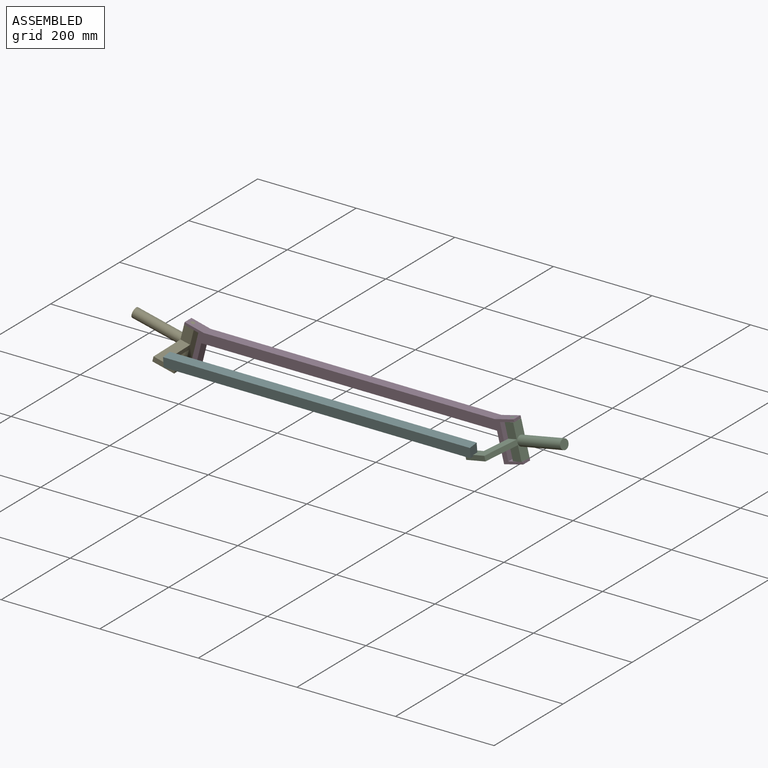
[diagram: assembled view]
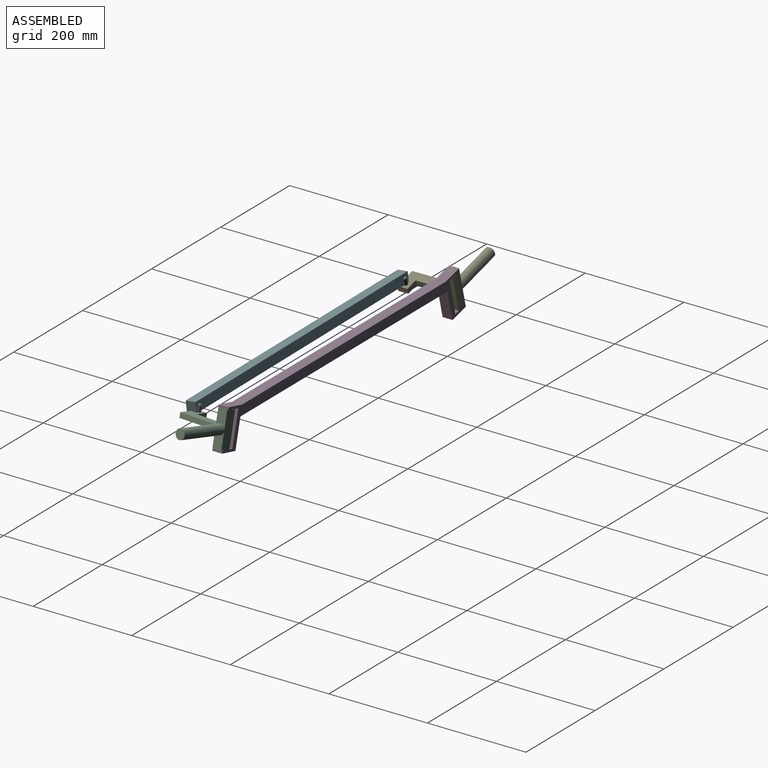
[diagram: assembled view, second angle]
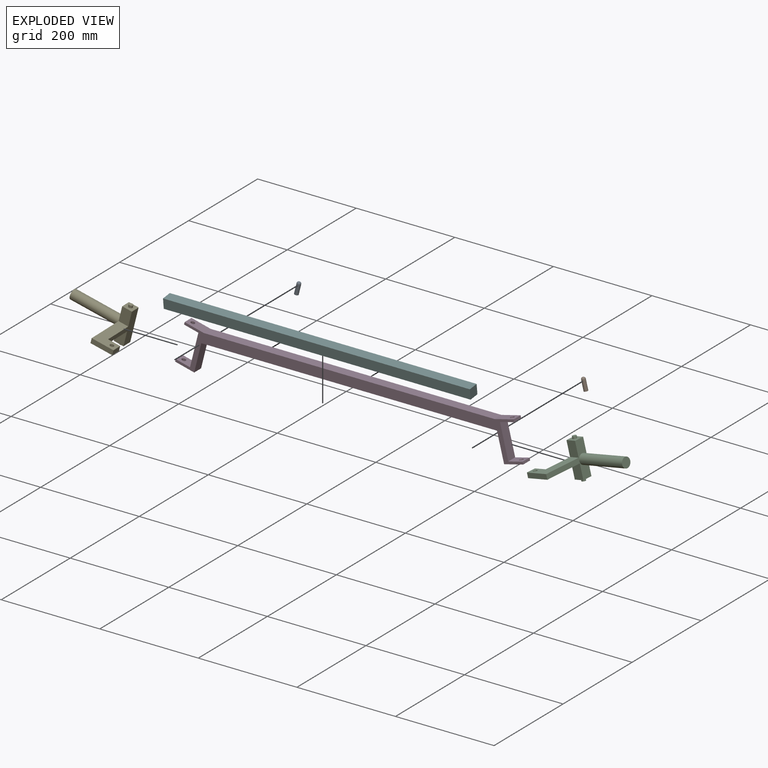
[diagram: exploded view]
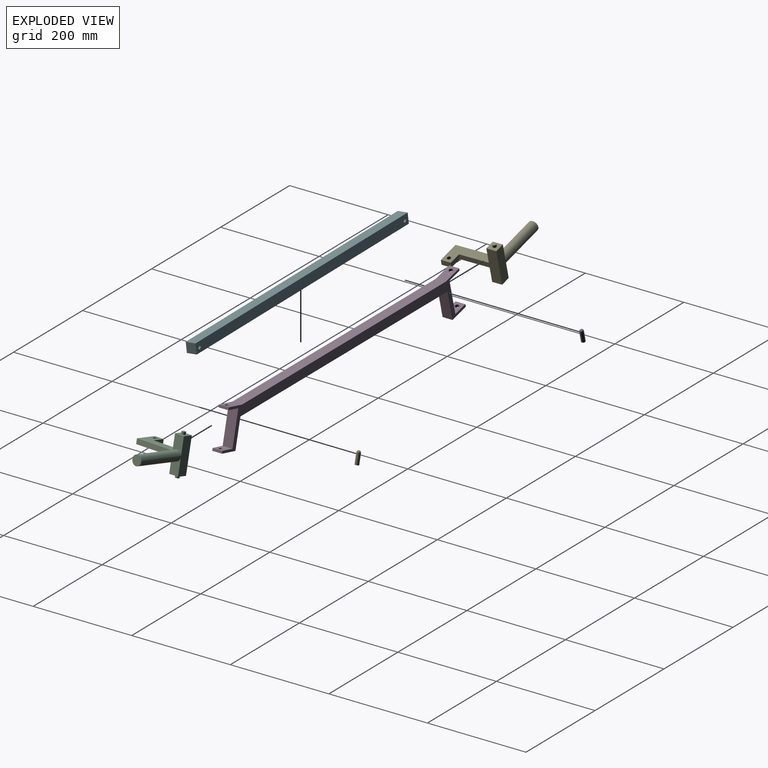
[diagram: exploded view, second angle]
ASSEMBLY  parts=6 mates=6
PART A: 3 faces, bbox 8x8x25 mm
  f0: cylinder r=4mm len=21mm, axis (0,0,-1), area 527.8mm2, adj f1,f2
  f1: plane 8x8mm, normal (0,0,-1), area 50.3mm2, adj f0
  f2: sphere r=4mm, area 100.5mm2, adj f0
PART B: same geometry as A
PART C: 19 faces, bbox 100x145x80 mm
  f0: plane 45x10mm, normal (1,0,0), area 450mm2, adj f6,f14,f15,f16
  f1: plane 30x20mm, normal (1,0,0), area 600mm2, adj f3,f6,f7,f14
  f2: plane 120x70mm, normal (-1,0,0), area 1678.8mm2, adj f3,f5,f6,f7,f12,f13
  f3: plane 20x20mm, normal (0,0,-1), area 349.7mm2, adj f1,f2,f6,f7,f10
  f4: plane 30x20mm, normal (1,0,0), area 600mm2, adj f5,f6,f7,f15
  f5: plane 20x20mm, normal (0,0,1), area 349.7mm2, adj f2,f4,f6,f7,f8
  f6: plane 100x70mm, normal (0,-1,0), area 1886mm2, adj f0,f1,f2,f3,f4,f5,f12,f14
  f7: plane 80x70mm, normal (0,1,0), area 2000mm2, adj f1,f2,f3,f4,f5,f14,f15,f17
  f8: cylinder r=4mm len=8mm, axis (0,0,-1), area 125.7mm2, adj f5,f9
  f9: plane 8x8mm, normal (0,0,1), area 50.3mm2, adj f8
  f10: cylinder r=4mm len=8mm, axis (0,0,1), area 125.7mm2, adj f3,f11
  f11: plane 8x8mm, normal (0,0,-1), area 50.3mm2, adj f10
  f12: cylinder r=10mm len=100mm, axis (0,1,0), area 6003.5mm2, adj f2,f6,f13
  f13: plane 20x19.9mm, normal (0,-1,0), area 314mm2, adj f2,f12
  f14: plane 80x45mm, normal (0,0,-1), area 2049.7mm2, adj f0,f1,f6,f7,f16,f17,f18
  f15: plane 80x45mm, normal (0,0,1), area 2049.7mm2, adj f0,f4,f6,f7,f16,f17,f18
  f16: plane 20x10mm, normal (0,1,0), area 200mm2, adj f0,f14,f15,f17
  f17: plane 25x10mm, normal (-1,0,0), area 250mm2, adj f7,f14,f15,f16
  f18: cylinder r=4mm len=10mm, axis (0,0,1), area 251.3mm2, adj f14,f15
PART D: 24 faces, bbox 706.4x20x87.3 mm
  f0: plane 20x4.85mm, normal (0.97,0,0.24), area 100mm2, adj f1,f4,f11,f17
  f1: plane 706.42x87.31mm, normal (0,-1,0), area 14100mm2, adj f0,f2,f3,f5,f6,f7,f8,f9
  f2: plane 20x4.85mm, normal (-0.97,0,0.24), area 100mm2, adj f1,f4,f6,f14
  f3: plane 590x20mm, normal (0,0,1), area 11800mm2, adj f1,f4,f6,f11
  f4: plane 706.42x87.31mm, normal (0,1,0), area 14100mm2, adj f0,f2,f3,f5,f6,f7,f8,f9
  f5: plane 600x20mm, normal (0,0,-1), area 12000mm2, adj f1,f4,f9,f10
  f6: plane 38.81x20mm, normal (0.24,0,0.97), area 749.7mm2, adj f1,f2,f3,f4,f21
  f7: plane 38.81x20mm, normal (-0.24,0,-0.97), area 749.7mm2, adj f1,f4,f8,f9,f20
  f8: plane 20x4.85mm, normal (-0.97,0,0.24), area 100mm2, adj f1,f4,f7,f15
  f9: plane 57.61x20mm, normal (0.97,0,-0.24), area 1187.7mm2, adj f1,f4,f5,f7
  f10: plane 57.61x20mm, normal (-0.97,0,-0.24), area 1187.7mm2, adj f1,f4,f5,f12
  f11: plane 38.81x20mm, normal (-0.24,0,0.97), area 749.7mm2, adj f0,f1,f3,f4,f23
  f12: plane 38.81x20mm, normal (0.24,0,-0.97), area 749.7mm2, adj f1,f4,f10,f13,f22
  f13: plane 20x4.85mm, normal (0.97,0,0.24), area 100mm2, adj f1,f4,f12,f18
  f14: plane 29.1x20mm, normal (-0.24,0,-0.97), area 549.7mm2, adj f1,f2,f4,f16,f21
  f15: plane 29.1x20mm, normal (0.24,0,0.97), area 549.7mm2, adj f1,f4,f8,f16,f20
  f16: plane 67.91x20mm, normal (-0.97,0,0.24), area 1400mm2, adj f1,f4,f14,f15
  f17: plane 29.1x20mm, normal (0.24,0,-0.97), area 549.7mm2, adj f0,f1,f4,f19,f23
  f18: plane 29.1x20mm, normal (-0.24,0,0.97), area 549.7mm2, adj f1,f4,f13,f19,f22
  f19: plane 67.91x20mm, normal (0.97,0,0.24), area 1400mm2, adj f1,f4,f17,f18
  f20: cylinder r=4mm len=8.97mm, axis (0.24,0,0.97), area 125.7mm2, adj f7,f15
  f21: cylinder r=4mm len=8.97mm, axis (0.24,0,0.97), area 125.7mm2, adj f6,f14
  f22: cylinder r=4mm len=8.97mm, axis (-0.24,0,0.97), area 125.7mm2, adj f12,f18
  f23: cylinder r=4mm len=8.97mm, axis (-0.24,0,0.97), area 125.7mm2, adj f11,f17
PART E: same geometry as C
PART F: 10 faces, bbox 620x20x20 mm
  f0: plane 20x20mm, normal (-1,0,0), area 400mm2, adj f1,f3,f4,f5
  f1: plane 620x20mm, normal (0,-1,0), area 12400mm2, adj f0,f2,f4,f5
  f2: plane 20x20mm, normal (1,0,0), area 400mm2, adj f1,f3,f4,f5
  f3: plane 620x20mm, normal (0,1,0), area 12400mm2, adj f0,f2,f4,f5
  f4: plane 620x20mm, normal (0,0,1), area 12299.5mm2, adj f0,f1,f2,f3,f6,f8
  f5: plane 620x20mm, normal (0,0,-1), area 12400mm2, adj f0,f1,f2,f3
  f6: cylinder r=4mm len=8mm, axis (0,0,1), area 100.5mm2, adj f4,f7
  f7: plane 8x8mm, normal (0,0,1), area 50.3mm2, adj f6
  f8: cylinder r=4mm len=8mm, axis (0,0,1), area 100.5mm2, adj f4,f9
  f9: plane 8x8mm, normal (0,0,1), area 50.3mm2, adj f8
PLACE A rot(axis=(0.01,1,0.07),14.1deg) t=(-75.54,4.69,-85)mm
PLACE B rot(axis=(0.06,-0.88,-0.47),15.9deg) t=(534.63,8.26,-87.18)mm
PLACE C rot(axis=(-0.66,0.75,-0.08),169.5deg) t=(550.88,95.49,-41.89)mm
PLACE D t=(-66.1,94.26,-62.23)mm fixed
PLACE E rot(axis=(-0.12,0.12,-0.98),89.9deg) t=(-98.86,94.42,-110.1)mm
PLACE F rot(axis=(-1,0,0.01),83.4deg) t=(-80.3,-16.38,-56.95)mm
MATE fastened A.f0 <-> E.f18  axis (-0.24,0,-0.97) through (-75.54,4.69,-85)mm
MATE revolute C.f8 <-> D.f22  axis (-0.24,0,0.97) through (558.01,84.26,-34.95)mm
MATE revolute E.f8 <-> D.f20  axis (0.24,0,0.97) through (-90.2,84.26,-34.95)mm
MATE fastened B.f0 <-> C.f18  axis (0.24,0,-0.97) through (534.63,8.26,-87.18)mm
MATE ball B.f0 <-> F.f8  axis (-0.24,0,0.97) through (529.53,8.26,-66.81)mm
MATE ball A.f0 <-> F.f6  axis (0.24,0,0.97) through (-70.45,4.69,-64.63)mm
